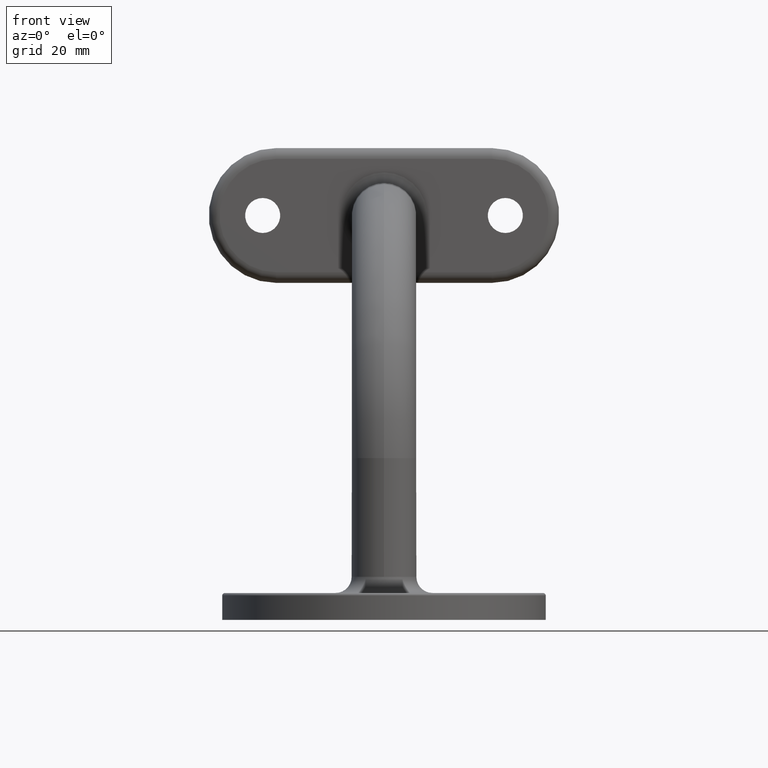
[diagram: clean part render]
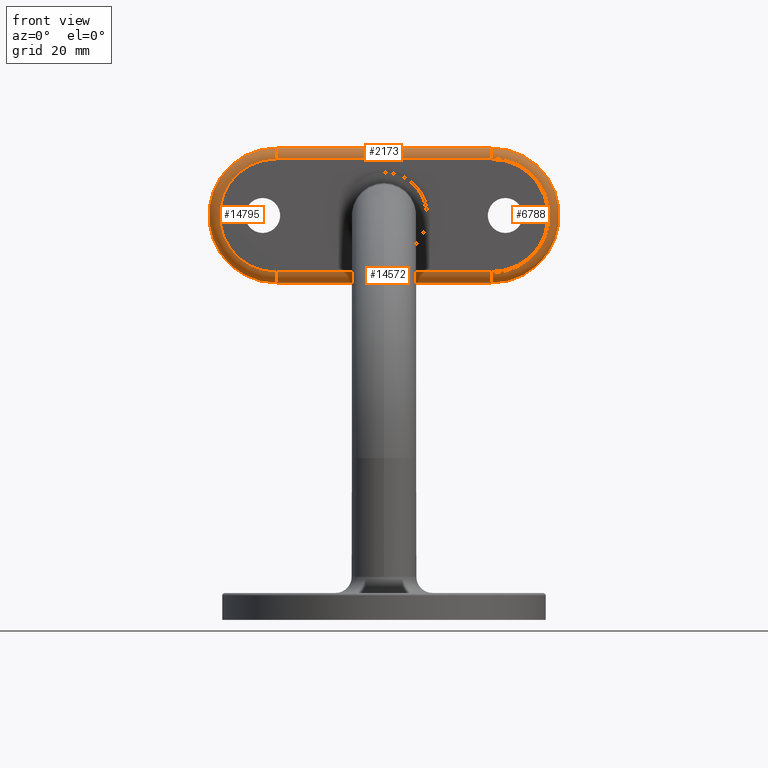
[diagram: same view with one multi-face feature highlighted, each face labeled with its STEP entity id]
A machine part, front view. The highlighted faces form ONE feature: a constant-radius fillet chain: 4 tangent blend faces with common blend radius 2 mm. The faces share edges in the B-rep.
Their STEP definitions:
[1] entity #14795 (Torus):
#400 = CARTESIAN_POINT ( 'NONE',  ( -20.00000000000000355, 48.29999999999999005, 64.50000000000000000 ) ) ;
#660 = EDGE_CURVE ( 'NONE', #10494, #11057, #12154, .T. ) ;
#664 = DIRECTION ( 'NONE',  ( 1.000000000000000000, 0.000000000000000000, -0.000000000000000000 ) ) ;
#1183 = CARTESIAN_POINT ( 'NONE',  ( -20.00000000000000355, 48.29999999999999716, 75.00000000000000000 ) ) ;
#1953 = CARTESIAN_POINT ( 'NONE',  ( -20.00000000000000355, 50.29999999999999716, 62.50000000000001421 ) ) ;
#2048 = ORIENTED_EDGE ( 'NONE', *, *, #660, .F. ) ;
#2132 = AXIS2_PLACEMENT_3D ( 'NONE', #14250, #664, #5779 ) ;
#2169 = DIRECTION ( 'NONE',  ( 0.000000000000000000, 1.000000000000000000, -3.828568698926949435E-16 ) ) ;
#2193 = EDGE_CURVE ( 'NONE', #5054, #11057, #8753, .T. ) ;
#2222 = DIRECTION ( 'NONE',  ( 0.000000000000000000, 3.828568698926949435E-16, 1.000000000000000000 ) ) ;
#2333 = EDGE_CURVE ( 'NONE', #5054, #14856, #14927, .T. ) ;
#2876 = EDGE_LOOP ( 'NONE', ( #6782, #2048, #13825, #8844 ) ) ;
#2877 = CARTESIAN_POINT ( 'NONE',  ( -20.00000000000000355, 48.30000000000000426, 85.49999999999998579 ) ) ;
#3571 = DIRECTION ( 'NONE',  ( 0.000000000000000000, 6.608470384673553982E-16, 1.000000000000000000 ) ) ;
#4955 = AXIS2_PLACEMENT_3D ( 'NONE', #1183, #7238, #3571 ) ;
#4980 = DIRECTION ( 'NONE',  ( 0.000000000000000000, 5.551115123125784674E-16, 1.000000000000000000 ) ) ;
#5054 = VERTEX_POINT ( 'NONE', #1953 ) ;
#5779 = DIRECTION ( 'NONE',  ( 0.000000000000000000, 0.000000000000000000, -1.000000000000000000 ) ) ;
#6220 = AXIS2_PLACEMENT_3D ( 'NONE', #12535, #12389, #4980 ) ;
#6782 = ORIENTED_EDGE ( 'NONE', *, *, #2193, .T. ) ;
#7238 = DIRECTION ( 'NONE',  ( -0.000000000000000000, -1.000000000000000000, 3.828568698926949435E-16 ) ) ;
#7529 = FACE_OUTER_BOUND ( 'NONE', #2876, .T. ) ;
#7564 = EDGE_CURVE ( 'NONE', #14856, #10494, #10022, .T. ) ;
#8753 = CIRCLE ( 'NONE', #14231, 2.000000000000001776 ) ;
#8844 = ORIENTED_EDGE ( 'NONE', *, *, #2333, .F. ) ;
#9959 = DIRECTION ( 'NONE',  ( -1.000000000000000000, -0.000000000000000000, -0.000000000000000000 ) ) ;
#10022 = CIRCLE ( 'NONE', #2132, 2.000000000000001776 ) ;
#10494 = VERTEX_POINT ( 'NONE', #2877 ) ;
#11057 = VERTEX_POINT ( 'NONE', #400 ) ;
#12154 = CIRCLE ( 'NONE', #4955, 10.49999999999999467 ) ;
#12389 = DIRECTION ( 'NONE',  ( 0.000000000000000000, 1.000000000000000000, -3.828568698926949435E-16 ) ) ;
#12525 = TOROIDAL_SURFACE ( 'NONE', #14332, 10.49999999999999645, 2.000000000000000000 ) ;
#12535 = CARTESIAN_POINT ( 'NONE',  ( -20.00000000000000355, 50.29999999999999716, 75.00000000000000000 ) ) ;
#13233 = CARTESIAN_POINT ( 'NONE',  ( -20.00000000000000355, 50.30000000000000426, 87.50000000000001421 ) ) ;
#13753 = DIRECTION ( 'NONE',  ( 0.000000000000000000, 0.000000000000000000, 1.000000000000000000 ) ) ;
#13825 = ORIENTED_EDGE ( 'NONE', *, *, #7564, .F. ) ;
#14231 = AXIS2_PLACEMENT_3D ( 'NONE', #15873, #9959, #13753 ) ;
#14250 = CARTESIAN_POINT ( 'NONE',  ( -20.00000000000000355, 50.30000000000000426, 85.49999999999998579 ) ) ;
#14332 = AXIS2_PLACEMENT_3D ( 'NONE', #14645, #2169, #2222 ) ;
#14645 = CARTESIAN_POINT ( 'NONE',  ( -20.00000000000000355, 50.29999999999999716, 75.00000000000000000 ) ) ;
#14795 = ADVANCED_FACE ( 'NONE', ( #7529 ), #12525, .T. ) ;
#14856 = VERTEX_POINT ( 'NONE', #13233 ) ;
#14927 = CIRCLE ( 'NONE', #6220, 12.49999999999999645 ) ;
#15873 = CARTESIAN_POINT ( 'NONE',  ( -20.00000000000000355, 50.29999999999999005, 64.50000000000001421 ) ) ;
[2] entity #2173 (Cylinder):
#292 = ORIENTED_EDGE ( 'NONE', *, *, #6029, .F. ) ;
#664 = DIRECTION ( 'NONE',  ( 1.000000000000000000, 0.000000000000000000, -0.000000000000000000 ) ) ;
#955 = VECTOR ( 'NONE', #2133, 1000.000000000000000 ) ;
#2132 = AXIS2_PLACEMENT_3D ( 'NONE', #14250, #664, #5779 ) ;
#2133 = DIRECTION ( 'NONE',  ( -1.000000000000000000, 1.328301600283711816E-31, 3.469446951953613696E-16 ) ) ;
#2173 = ADVANCED_FACE ( 'NONE', ( #7787 ), #2964, .T. ) ;
#2370 = CARTESIAN_POINT ( 'NONE',  ( -20.00000000000000355, 50.30000000000000426, 85.50000000000000000 ) ) ;
#2453 = CARTESIAN_POINT ( 'NONE',  ( 20.00000000000001066, 50.30000000000000426, 87.50000000000000000 ) ) ;
#2513 = VERTEX_POINT ( 'NONE', #10446 ) ;
#2877 = CARTESIAN_POINT ( 'NONE',  ( -20.00000000000000355, 48.30000000000000426, 85.49999999999998579 ) ) ;
#2964 = CYLINDRICAL_SURFACE ( 'NONE', #15872, 2.000000000000001776 ) ;
#3441 = EDGE_CURVE ( 'NONE', #14856, #2513, #9336, .T. ) ;
#3606 = DIRECTION ( 'NONE',  ( 0.000000000000000000, 0.000000000000000000, 1.000000000000000000 ) ) ;
#4868 = DIRECTION ( 'NONE',  ( 1.000000000000000000, -1.328301600283711816E-31, -3.469446951953613696E-16 ) ) ;
#5779 = DIRECTION ( 'NONE',  ( 0.000000000000000000, 0.000000000000000000, -1.000000000000000000 ) ) ;
#5791 = CARTESIAN_POINT ( 'NONE',  ( -20.00000000000000355, 48.30000000000000426, 85.50000000000000000 ) ) ;
#5934 = EDGE_CURVE ( 'NONE', #14641, #2513, #10821, .T. ) ;
#6029 = EDGE_CURVE ( 'NONE', #14641, #10494, #9072, .T. ) ;
#6039 = VECTOR ( 'NONE', #4868, 1000.000000000000000 ) ;
#7564 = EDGE_CURVE ( 'NONE', #14856, #10494, #10022, .T. ) ;
#7787 = FACE_OUTER_BOUND ( 'NONE', #9057, .T. ) ;
#9057 = EDGE_LOOP ( 'NONE', ( #15410, #292, #15014, #11479 ) ) ;
#9072 = LINE ( 'NONE', #5791, #955 ) ;
#9200 = CARTESIAN_POINT ( 'NONE',  ( 20.00000000000001066, 50.30000000000000426, 85.49999999999997158 ) ) ;
#9336 = LINE ( 'NONE', #2453, #6039 ) ;
#9866 = DIRECTION ( 'NONE',  ( -1.000000000000000000, 1.328301600283711816E-31, 3.469446951953613696E-16 ) ) ;
#10022 = CIRCLE ( 'NONE', #2132, 2.000000000000001776 ) ;
#10446 = CARTESIAN_POINT ( 'NONE',  ( 20.00000000000001066, 50.29999999999999716, 87.49999999999997158 ) ) ;
#10494 = VERTEX_POINT ( 'NONE', #2877 ) ;
#10821 = CIRCLE ( 'NONE', #15145, 2.000000000000001776 ) ;
#11370 = CARTESIAN_POINT ( 'NONE',  ( 20.00000000000001066, 48.30000000000000426, 85.49999999999997158 ) ) ;
#11479 = ORIENTED_EDGE ( 'NONE', *, *, #3441, .F. ) ;
#11623 = DIRECTION ( 'NONE',  ( 0.000000000000000000, 0.000000000000000000, 1.000000000000000000 ) ) ;
#11847 = DIRECTION ( 'NONE',  ( -1.000000000000000000, 0.000000000000000000, 0.000000000000000000 ) ) ;
#13233 = CARTESIAN_POINT ( 'NONE',  ( -20.00000000000000355, 50.30000000000000426, 87.50000000000001421 ) ) ;
#14250 = CARTESIAN_POINT ( 'NONE',  ( -20.00000000000000355, 50.30000000000000426, 85.49999999999998579 ) ) ;
#14641 = VERTEX_POINT ( 'NONE', #11370 ) ;
#14856 = VERTEX_POINT ( 'NONE', #13233 ) ;
#15014 = ORIENTED_EDGE ( 'NONE', *, *, #5934, .T. ) ;
#15145 = AXIS2_PLACEMENT_3D ( 'NONE', #9200, #11847, #11623 ) ;
#15410 = ORIENTED_EDGE ( 'NONE', *, *, #7564, .T. ) ;
#15872 = AXIS2_PLACEMENT_3D ( 'NONE', #2370, #9866, #3606 ) ;
[3] entity #6788 (Torus):
#609 = CARTESIAN_POINT ( 'NONE',  ( 19.99999999999999645, 50.29999999999999005, 62.49999999999999289 ) ) ;
#1045 = DIRECTION ( 'NONE',  ( -0.000000000000000000, -1.000000000000000000, 3.828568698926949435E-16 ) ) ;
#1186 = DIRECTION ( 'NONE',  ( 0.000000000000000000, 3.828568698926949435E-16, 1.000000000000000000 ) ) ;
#2326 = CARTESIAN_POINT ( 'NONE',  ( 20.00000000000000355, 50.29999999999999716, 74.99999999999997158 ) ) ;
#2431 = DIRECTION ( 'NONE',  ( 0.000000000000000000, 1.000000000000000000, -3.828568698926949435E-16 ) ) ;
#2513 = VERTEX_POINT ( 'NONE', #10446 ) ;
#2703 = TOROIDAL_SURFACE ( 'NONE', #13504, 10.50000000000000000, 2.000000000000000000 ) ;
#4441 = ORIENTED_EDGE ( 'NONE', *, *, #14831, .F. ) ;
#4615 = ORIENTED_EDGE ( 'NONE', *, *, #14320, .T. ) ;
#4893 = DIRECTION ( 'NONE',  ( 0.000000000000000000, 5.551115123125784674E-16, 1.000000000000000000 ) ) ;
#5162 = ORIENTED_EDGE ( 'NONE', *, *, #5934, .F. ) ;
#5695 = DIRECTION ( 'NONE',  ( 1.000000000000000000, 0.000000000000000000, 0.000000000000000000 ) ) ;
#5934 = EDGE_CURVE ( 'NONE', #14641, #2513, #10821, .T. ) ;
#6366 = FACE_OUTER_BOUND ( 'NONE', #13960, .T. ) ;
#6469 = VERTEX_POINT ( 'NONE', #609 ) ;
#6640 = AXIS2_PLACEMENT_3D ( 'NONE', #9832, #1045, #8652 ) ;
#6788 = ADVANCED_FACE ( 'NONE', ( #6366 ), #2703, .T. ) ;
#7090 = CARTESIAN_POINT ( 'NONE',  ( 19.99999999999999645, 50.29999999999999005, 64.49999999999998579 ) ) ;
#8652 = DIRECTION ( 'NONE',  ( 0.000000000000000000, 6.608470384673553982E-16, 1.000000000000000000 ) ) ;
#8697 = ORIENTED_EDGE ( 'NONE', *, *, #14343, .F. ) ;
#9085 = CIRCLE ( 'NONE', #14012, 12.49999999999999645 ) ;
#9200 = CARTESIAN_POINT ( 'NONE',  ( 20.00000000000001066, 50.30000000000000426, 85.49999999999997158 ) ) ;
#9426 = DIRECTION ( 'NONE',  ( 0.000000000000000000, 0.000000000000000000, -1.000000000000000000 ) ) ;
#9518 = CARTESIAN_POINT ( 'NONE',  ( 20.00000000000000355, 50.29999999999999716, 74.99999999999997158 ) ) ;
#9812 = CIRCLE ( 'NONE', #14426, 2.000000000000001776 ) ;
#9832 = CARTESIAN_POINT ( 'NONE',  ( 20.00000000000000355, 48.29999999999999716, 74.99999999999997158 ) ) ;
#10446 = CARTESIAN_POINT ( 'NONE',  ( 20.00000000000001066, 50.29999999999999716, 87.49999999999997158 ) ) ;
#10821 = CIRCLE ( 'NONE', #15145, 2.000000000000001776 ) ;
#11370 = CARTESIAN_POINT ( 'NONE',  ( 20.00000000000001066, 48.30000000000000426, 85.49999999999997158 ) ) ;
#11623 = DIRECTION ( 'NONE',  ( 0.000000000000000000, 0.000000000000000000, 1.000000000000000000 ) ) ;
#11847 = DIRECTION ( 'NONE',  ( -1.000000000000000000, 0.000000000000000000, 0.000000000000000000 ) ) ;
#13242 = DIRECTION ( 'NONE',  ( 0.000000000000000000, 1.000000000000000000, -3.828568698926949435E-16 ) ) ;
#13504 = AXIS2_PLACEMENT_3D ( 'NONE', #9518, #13242, #1186 ) ;
#13542 = VERTEX_POINT ( 'NONE', #14724 ) ;
#13960 = EDGE_LOOP ( 'NONE', ( #4615, #4441, #5162, #8697 ) ) ;
#14012 = AXIS2_PLACEMENT_3D ( 'NONE', #2326, #2431, #4893 ) ;
#14320 = EDGE_CURVE ( 'NONE', #13542, #6469, #9812, .T. ) ;
#14343 = EDGE_CURVE ( 'NONE', #13542, #14641, #15999, .T. ) ;
#14426 = AXIS2_PLACEMENT_3D ( 'NONE', #7090, #5695, #9426 ) ;
#14641 = VERTEX_POINT ( 'NONE', #11370 ) ;
#14724 = CARTESIAN_POINT ( 'NONE',  ( 19.99999999999999645, 48.29999999999999005, 64.49999999999998579 ) ) ;
#14831 = EDGE_CURVE ( 'NONE', #2513, #6469, #9085, .T. ) ;
#15145 = AXIS2_PLACEMENT_3D ( 'NONE', #9200, #11847, #11623 ) ;
#15999 = CIRCLE ( 'NONE', #6640, 10.49999999999999467 ) ;
[4] entity #14572 (Cylinder):
#290 = LINE ( 'NONE', #7573, #14638 ) ;
#321 = CYLINDRICAL_SURFACE ( 'NONE', #11820, 2.000000000000001776 ) ;
#400 = CARTESIAN_POINT ( 'NONE',  ( -20.00000000000000355, 48.29999999999999005, 64.50000000000000000 ) ) ;
#609 = CARTESIAN_POINT ( 'NONE',  ( 19.99999999999999645, 50.29999999999999005, 62.49999999999999289 ) ) ;
#867 = FACE_OUTER_BOUND ( 'NONE', #3825, .T. ) ;
#1953 = CARTESIAN_POINT ( 'NONE',  ( -20.00000000000000355, 50.29999999999999716, 62.50000000000001421 ) ) ;
#2193 = EDGE_CURVE ( 'NONE', #5054, #11057, #8753, .T. ) ;
#2297 = LINE ( 'NONE', #9477, #2473 ) ;
#2473 = VECTOR ( 'NONE', #10819, 1000.000000000000000 ) ;
#3825 = EDGE_LOOP ( 'NONE', ( #13687, #8092, #4897, #14393 ) ) ;
#3898 = DIRECTION ( 'NONE',  ( 1.000000000000000000, -1.992452400425568382E-31, -5.204170427930422269E-16 ) ) ;
#4897 = ORIENTED_EDGE ( 'NONE', *, *, #2193, .F. ) ;
#5054 = VERTEX_POINT ( 'NONE', #1953 ) ;
#5695 = DIRECTION ( 'NONE',  ( 1.000000000000000000, 0.000000000000000000, 0.000000000000000000 ) ) ;
#6469 = VERTEX_POINT ( 'NONE', #609 ) ;
#7090 = CARTESIAN_POINT ( 'NONE',  ( 19.99999999999999645, 50.29999999999999005, 64.49999999999998579 ) ) ;
#7573 = CARTESIAN_POINT ( 'NONE',  ( 19.99999999999999645, 48.29999999999999005, 64.49999999999998579 ) ) ;
#8092 = ORIENTED_EDGE ( 'NONE', *, *, #8435, .F. ) ;
#8435 = EDGE_CURVE ( 'NONE', #11057, #13542, #290, .T. ) ;
#8753 = CIRCLE ( 'NONE', #14231, 2.000000000000001776 ) ;
#9426 = DIRECTION ( 'NONE',  ( 0.000000000000000000, 0.000000000000000000, -1.000000000000000000 ) ) ;
#9477 = CARTESIAN_POINT ( 'NONE',  ( -20.00000000000000355, 50.29999999999999005, 62.50000000000001421 ) ) ;
#9812 = CIRCLE ( 'NONE', #14426, 2.000000000000001776 ) ;
#9959 = DIRECTION ( 'NONE',  ( -1.000000000000000000, -0.000000000000000000, -0.000000000000000000 ) ) ;
#10819 = DIRECTION ( 'NONE',  ( -1.000000000000000000, 1.992452400425568382E-31, 5.204170427930422269E-16 ) ) ;
#11057 = VERTEX_POINT ( 'NONE', #400 ) ;
#11820 = AXIS2_PLACEMENT_3D ( 'NONE', #12673, #12618, #14116 ) ;
#12618 = DIRECTION ( 'NONE',  ( 1.000000000000000000, -1.992452400425568382E-31, -5.204170427930422269E-16 ) ) ;
#12673 = CARTESIAN_POINT ( 'NONE',  ( -20.00000000000000355, 50.29999999999999005, 64.50000000000001421 ) ) ;
#13542 = VERTEX_POINT ( 'NONE', #14724 ) ;
#13687 = ORIENTED_EDGE ( 'NONE', *, *, #14320, .F. ) ;
#13753 = DIRECTION ( 'NONE',  ( 0.000000000000000000, 0.000000000000000000, 1.000000000000000000 ) ) ;
#14116 = DIRECTION ( 'NONE',  ( 0.000000000000000000, 0.000000000000000000, -1.000000000000000000 ) ) ;
#14231 = AXIS2_PLACEMENT_3D ( 'NONE', #15873, #9959, #13753 ) ;
#14296 = EDGE_CURVE ( 'NONE', #6469, #5054, #2297, .T. ) ;
#14320 = EDGE_CURVE ( 'NONE', #13542, #6469, #9812, .T. ) ;
#14393 = ORIENTED_EDGE ( 'NONE', *, *, #14296, .F. ) ;
#14426 = AXIS2_PLACEMENT_3D ( 'NONE', #7090, #5695, #9426 ) ;
#14572 = ADVANCED_FACE ( 'NONE', ( #867 ), #321, .T. ) ;
#14638 = VECTOR ( 'NONE', #3898, 1000.000000000000000 ) ;
#14724 = CARTESIAN_POINT ( 'NONE',  ( 19.99999999999999645, 48.29999999999999005, 64.49999999999998579 ) ) ;
#15873 = CARTESIAN_POINT ( 'NONE',  ( -20.00000000000000355, 50.29999999999999005, 64.50000000000001421 ) ) ;